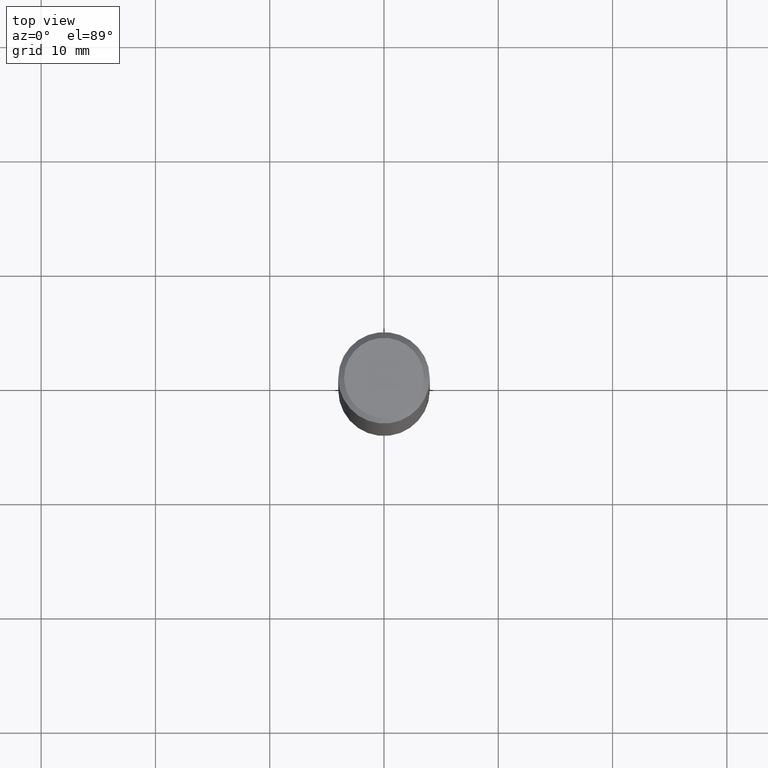
[diagram: clean part render]
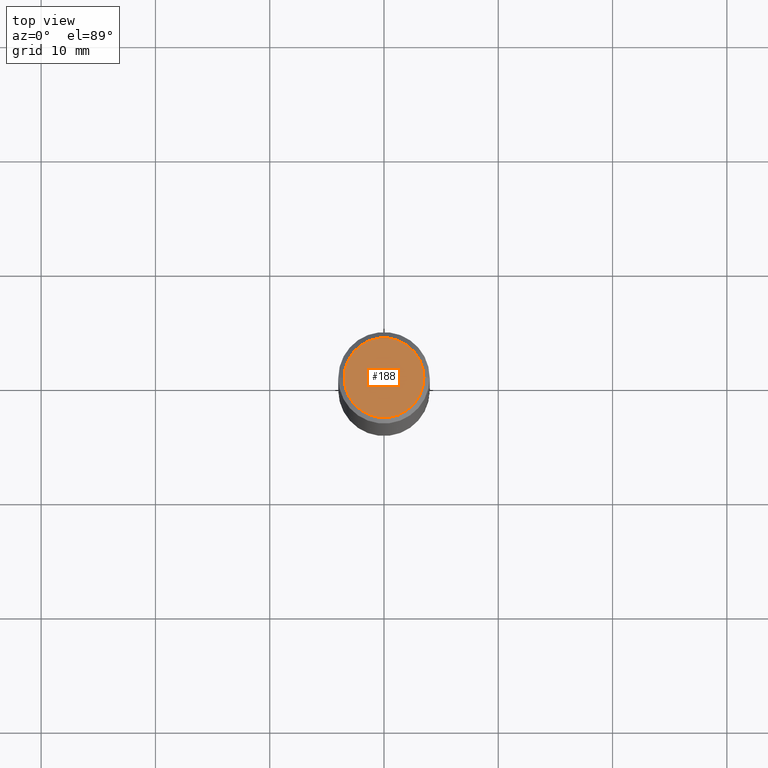
[diagram: same view with one face highlighted and labeled with its STEP entity id]
A machine part, top view. The second image highlights one B-rep face of the part: STEP entity #188.
In plain terms, the highlighted planar face has unit normal (0, -0, -1).
Its self-contained STEP definition (entity closure, byte-faithful):
#5 = CARTESIAN_POINT ( 'NONE',  ( -2.087702828670439639E-46, 2.980686340760894400E-32, 8.537024980200822558E-18 ) ) ;
#8 = ORIENTED_EDGE ( 'NONE', *, *, #92, .T. ) ;
#30 = CARTESIAN_POINT ( 'NONE',  ( -2.087702828670439639E-46, 2.980686340760894400E-32, 8.537024980200822558E-18 ) ) ;
#44 = VERTEX_POINT ( 'NONE', #111 ) ;
#92 = EDGE_CURVE ( 'NONE', #44, #358, #319, .T. ) ;
#94 = FACE_OUTER_BOUND ( 'NONE', #216, .T. ) ;
#95 = CARTESIAN_POINT ( 'NONE',  ( 9.601573681818602922E-16, 0.1374999999999998446, -4.758101716008314943E-16 ) ) ;
#111 = CARTESIAN_POINT ( 'NONE',  ( -0.1374999999999998446, 9.950721815702915469E-16, 8.537024980193986277E-18 ) ) ;
#140 = CARTESIAN_POINT ( 'NONE',  ( 0.1374999999999998446, -1.046838268059731308E-15, 8.537024980207840646E-18 ) ) ;
#141 = DIRECTION ( 'NONE',  ( -2.445468806185136597E-29, 3.491481338843145583E-15, 1.000000000000000000 ) ) ;
#146 = DIRECTION ( 'NONE',  ( 1.000000000000000000, -6.982962677686265922E-15, 4.876173381029105647E-29 ) ) ;
#147 = DIRECTION ( 'NONE',  ( -1.000000000000000000, 6.982962677686265922E-15, -4.876176775795935793E-29 ) ) ;
#163 = AXIS2_PLACEMENT_3D ( 'NONE', #95, #292, #147 ) ;
#177 = AXIS2_PLACEMENT_3D ( 'NONE', #30, #141, #224 ) ;
#188 = ADVANCED_FACE ( 'NONE', ( #94 ), #317, .F. ) ;
#203 = EDGE_CURVE ( 'NONE', #358, #44, #206, .T. ) ;
#206 = CIRCLE ( 'NONE', #293, 0.1374999999999998446 ) ;
#209 = DIRECTION ( 'NONE',  ( -2.445468806185136597E-29, 3.491481338843145583E-15, 1.000000000000000000 ) ) ;
#216 = EDGE_LOOP ( 'NONE', ( #8, #250 ) ) ;
#224 = DIRECTION ( 'NONE',  ( 1.000000000000000000, -6.982962677686265922E-15, 4.876173381029105647E-29 ) ) ;
#250 = ORIENTED_EDGE ( 'NONE', *, *, #203, .T. ) ;
#292 = DIRECTION ( 'NONE',  ( 2.438088387897960049E-29, -3.491481338843145188E-15, -1.000000000000000000 ) ) ;
#293 = AXIS2_PLACEMENT_3D ( 'NONE', #5, #209, #146 ) ;
#317 = PLANE ( 'NONE',  #163 ) ;
#319 = CIRCLE ( 'NONE', #177, 0.1374999999999998446 ) ;
#358 = VERTEX_POINT ( 'NONE', #140 ) ;